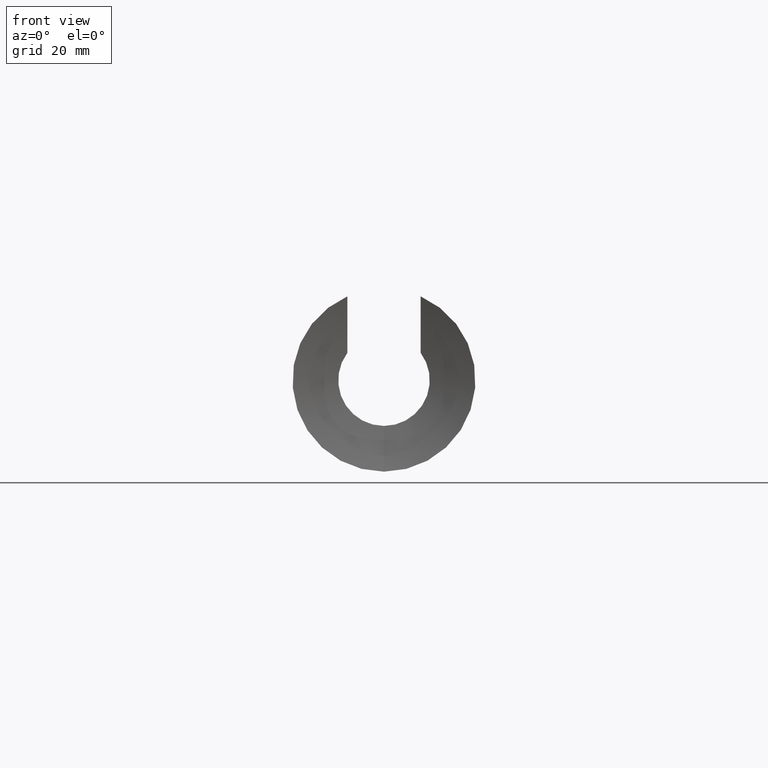
[diagram: clean part render]
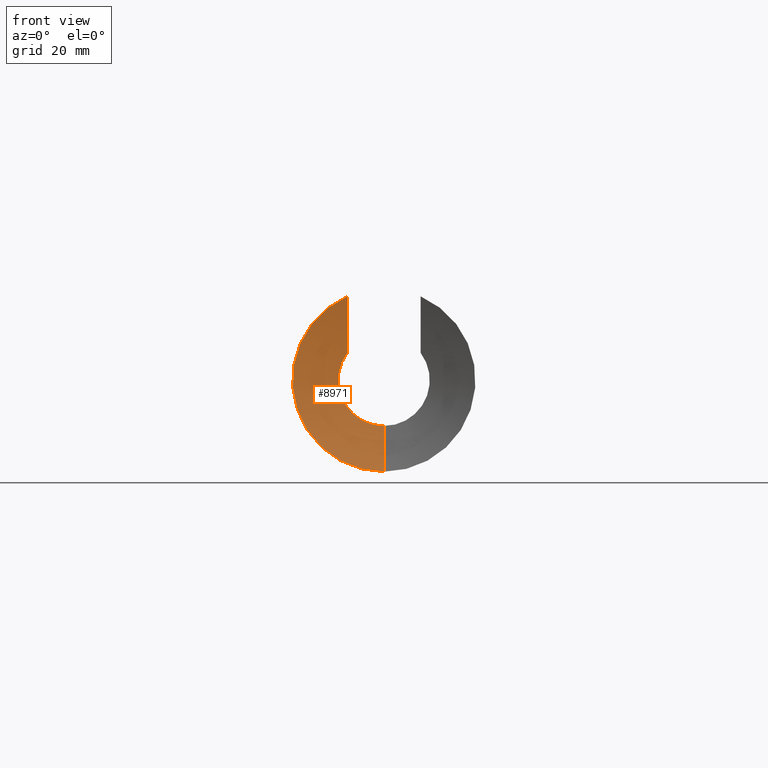
[diagram: same view with one face highlighted and labeled with its STEP entity id]
A machine part, front view. The second image highlights one B-rep face of the part: STEP entity #8971.
In plain terms, the highlighted spherical surface has radius 60 mm.
Its self-contained STEP definition (entity closure, byte-faithful):
#48 = DIRECTION ( 'NONE',  ( 0.0000000000000000000, 0.0000000000000000000, 1.000000000000000000 ) ) ;
#177 = VERTEX_POINT ( 'NONE', #7245 ) ;
#201 = EDGE_CURVE ( 'NONE', #177, #7244, #3397, .T. ) ;
#1381 = CIRCLE ( 'NONE', #3307, 59.46427498927402400 ) ;
#1451 = VERTEX_POINT ( 'NONE', #13178 ) ;
#1480 = ORIENTED_EDGE ( 'NONE', *, *, #13377, .F. ) ;
#1707 = DIRECTION ( 'NONE',  ( 0.0000000000000000000, 0.0000000000000000000, 1.000000000000000000 ) ) ;
#1732 = DIRECTION ( 'NONE',  ( -1.000000000000000000, 0.0000000000000000000, 0.0000000000000000000 ) ) ;
#1774 = CARTESIAN_POINT ( 'NONE',  ( 0.0000000000000000000, -56.56854249492380400, -3.463824224941972900E-015 ) ) ;
#1872 = AXIS2_PLACEMENT_3D ( 'NONE', #9560, #12678, #8617 ) ;
#3307 = AXIS2_PLACEMENT_3D ( 'NONE', #3726, #4779, #1707 ) ;
#3397 = CIRCLE ( 'NONE', #1872, 10.00000000000000000 ) ;
#3527 = CIRCLE ( 'NONE', #6903, 60.00000000000000000 ) ;
#3726 = CARTESIAN_POINT ( 'NONE',  ( -8.000000000000000000, -56.56854249492380400, -3.463824224941972900E-015 ) ) ;
#3893 = DIRECTION ( 'NONE',  ( 0.0000000000000000000, 0.0000000000000000000, 1.000000000000000000 ) ) ;
#3900 = ORIENTED_EDGE ( 'NONE', *, *, #201, .F. ) ;
#4275 = CARTESIAN_POINT ( 'NONE',  ( 0.0000000000000000000, 2.592255336072366100, -10.00000000000000000 ) ) ;
#4345 = CIRCLE ( 'NONE', #11999, 19.99999999999999300 ) ;
#4587 = ORIENTED_EDGE ( 'NONE', *, *, #7903, .F. ) ;
#4779 = DIRECTION ( 'NONE',  ( -1.000000000000000000, 0.0000000000000000000, 0.0000000000000000000 ) ) ;
#5256 = SPHERICAL_SURFACE ( 'NONE', #5420, 60.00000000000000000 ) ;
#5420 = AXIS2_PLACEMENT_3D ( 'NONE', #6640, #8808, #7850 ) ;
#6202 = DIRECTION ( 'NONE',  ( 0.0000000000000000000, 1.000000000000000000, 0.0000000000000000000 ) ) ;
#6640 = CARTESIAN_POINT ( 'NONE',  ( 0.0000000000000000000, -56.56854249492380400, -3.463824224941972900E-015 ) ) ;
#6903 = AXIS2_PLACEMENT_3D ( 'NONE', #1774, #1732, #3893 ) ;
#7244 = VERTEX_POINT ( 'NONE', #4275 ) ;
#7245 = CARTESIAN_POINT ( 'NONE',  ( -8.000000000000001800, 2.592255336072366100, 5.999999999999997300 ) ) ;
#7850 = DIRECTION ( 'NONE',  ( 0.0000000000000000000, 0.0000000000000000000, -1.000000000000000000 ) ) ;
#7903 = EDGE_CURVE ( 'NONE', #1451, #177, #1381, .T. ) ;
#7982 = FACE_OUTER_BOUND ( 'NONE', #10387, .T. ) ;
#8617 = DIRECTION ( 'NONE',  ( 0.0000000000000000000, 0.0000000000000000000, -1.000000000000000000 ) ) ;
#8808 = DIRECTION ( 'NONE',  ( 1.000000000000000000, 0.0000000000000000000, 0.0000000000000000000 ) ) ;
#8971 = ADVANCED_FACE ( 'NONE', ( #7982 ), #5256, .F. ) ;
#9254 = CARTESIAN_POINT ( 'NONE',  ( 0.0000000000000000000, 0.0000000000000000000, 0.0000000000000000000 ) ) ;
#9560 = CARTESIAN_POINT ( 'NONE',  ( 0.0000000000000000000, 2.592255336072366100, 0.0000000000000000000 ) ) ;
#10387 = EDGE_LOOP ( 'NONE', ( #13061, #3900, #4587, #1480 ) ) ;
#10625 = VERTEX_POINT ( 'NONE', #11634 ) ;
#11634 = CARTESIAN_POINT ( 'NONE',  ( 0.0000000000000000000, 0.0000000000000000000, -19.99999999999999300 ) ) ;
#11999 = AXIS2_PLACEMENT_3D ( 'NONE', #9254, #6202, #48 ) ;
#12404 = EDGE_CURVE ( 'NONE', #7244, #10625, #3527, .T. ) ;
#12678 = DIRECTION ( 'NONE',  ( -0.0000000000000000000, -1.000000000000000000, -0.0000000000000000000 ) ) ;
#13061 = ORIENTED_EDGE ( 'NONE', *, *, #12404, .F. ) ;
#13178 = CARTESIAN_POINT ( 'NONE',  ( -8.000000000000000000, 0.0000000000000000000, 18.33030277982335600 ) ) ;
#13377 = EDGE_CURVE ( 'NONE', #10625, #1451, #4345, .T. ) ;